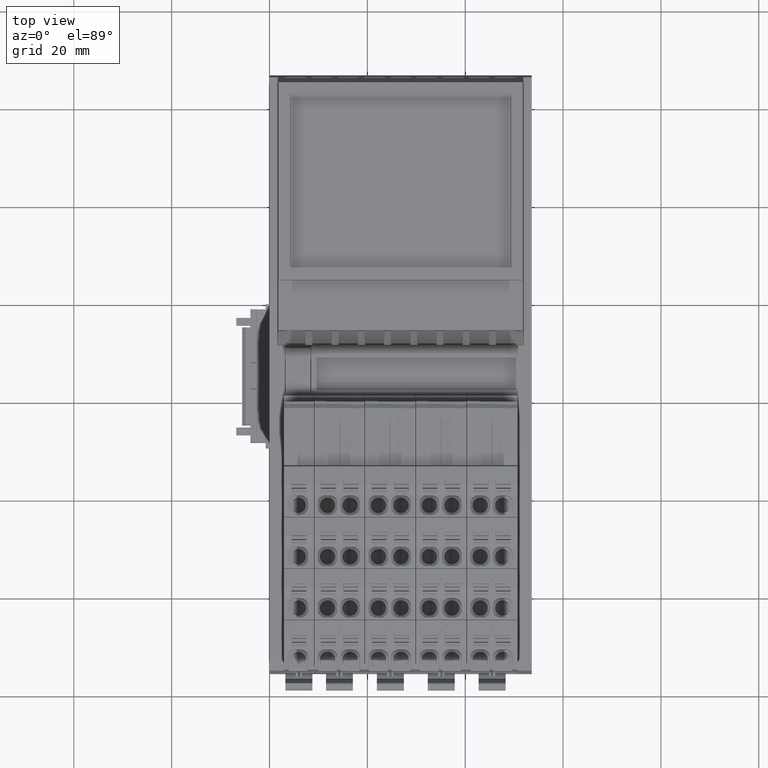
[diagram: clean part render]
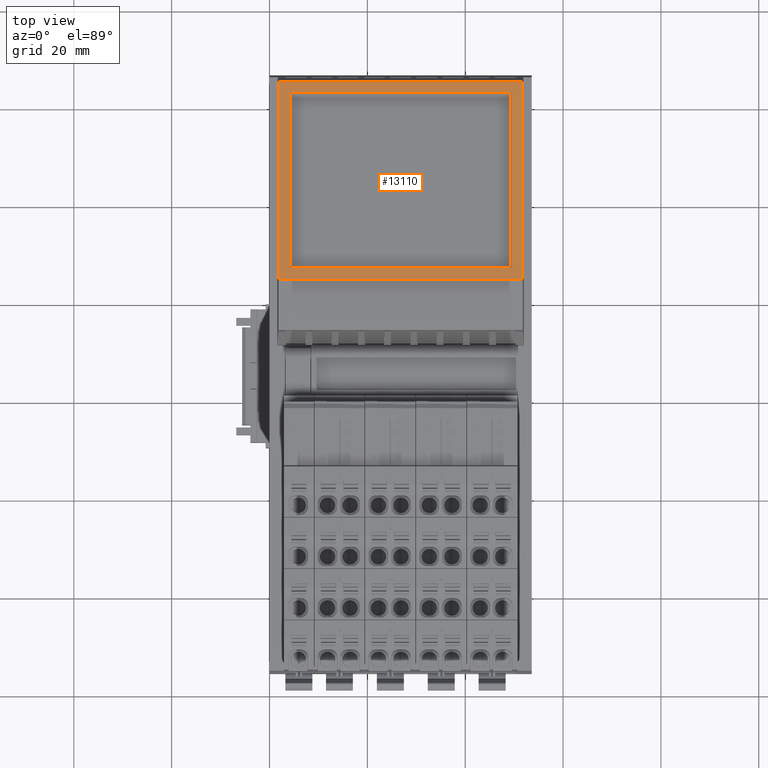
[diagram: same view with one face highlighted and labeled with its STEP entity id]
A machine part, top view. The second image highlights one B-rep face of the part: STEP entity #13110.
In plain terms, the highlighted planar face has unit normal (0, -0, -1).
Its self-contained STEP definition (entity closure, byte-faithful):
#7010=CARTESIAN_POINT('',(77.7835661800199,53.9638295820345,
1.83817404351644));
#7020=VERTEX_POINT('',#7010);
#7050=CARTESIAN_POINT('',(77.7835661800038,53.9638295820312,0.));
#7060=DIRECTION('',(8.77981026340904E-12,1.78947583062968E-12,1.));
#7070=VECTOR('',#7060,1.);
#7080=LINE('',#7050,#7070);
#7090=CARTESIAN_POINT('',(77.783566179582,53.9638295819453,
-48.0381739841063));
#7100=VERTEX_POINT('',#7090);
#7110=EDGE_CURVE('',#7100,#7020,#7080,.T.);
#7800=CARTESIAN_POINT('',(37.6586581128552,49.0371103637114,
1.8381740435707));
#7810=VERTEX_POINT('',#7800);
#7840=CARTESIAN_POINT('',(0.,44.4132085631066,1.83817404362162));
#7850=DIRECTION('',(0.992546151641242,0.121869343405803,
-1.3420962831594E-12));
#7860=VECTOR('',#7850,1.);
#7870=LINE('',#7840,#7860);
#7880=EDGE_CURVE('',#7810,#7020,#7870,.T.);
#12020=CARTESIAN_POINT('',(37.6586581124835,49.0371103636303,
-48.0381739837405));
#12030=VERTEX_POINT('',#12020);
#12060=CARTESIAN_POINT('',(37.6586581128415,49.0371103637084,0.));
#12070=DIRECTION('',(7.45255700258389E-12,1.62650962179142E-12,1.));
#12080=VECTOR('',#12070,1.);
#12090=LINE('',#12060,#12080);
#12100=EDGE_CURVE('',#12030,#7810,#12090,.T.);
#12610=CARTESIAN_POINT('',(-31.246860136439,40.5765765616751,
53.1884466586901));
#12620=DIRECTION('',(0.121869343405803,-0.992546151641242,
7.06147637117315E-13));
#12630=DIRECTION('',(-0.992546151641242,-0.121869343405803,
7.54886482464612E-12));
#12640=AXIS2_PLACEMENT_3D('',#12610,#12620,#12630);
#12650=PLANE('',#12640);
#12660=CARTESIAN_POINT('',(75.7744640844391,53.7171428634169,0.));
#12670=DIRECTION('',(7.41359144665895E-12,1.62172525311682E-12,1.));
#12680=VECTOR('',#12670,1.);
#12690=LINE('',#12660,#12680);
#12700=CARTESIAN_POINT('',(75.7744640841004,53.7171428633428,
-45.6787397549419));
#12710=VERTEX_POINT('',#12700);
#12720=CARTESIAN_POINT('',(75.7744640844352,53.717142863416,
-0.521260160597123));
#12730=VERTEX_POINT('',#12720);
#12740=EDGE_CURVE('',#12710,#12730,#12690,.T.);
#12750=ORIENTED_EDGE('',*,*,#12740,.T.);
#12760=CARTESIAN_POINT('',(0.,44.4132085630728,-45.6787397543656));
#12770=DIRECTION('',(0.992546151641242,0.121869343405803,
-7.54886995881526E-12));
#12780=VECTOR('',#12770,1.);
#12790=LINE('',#12760,#12780);
#12800=CARTESIAN_POINT('',(40.1264647781917,49.3401189214758,
-45.6787397546708));
#12810=VERTEX_POINT('',#12800);
#12820=EDGE_CURVE('',#12810,#12710,#12790,.T.);
#12830=ORIENTED_EDGE('',*,*,#12820,.T.);
#12840=CARTESIAN_POINT('',(40.12646477853,49.3401189215499,0.));
#12850=DIRECTION('',(7.40641588085225E-12,1.62084420442001E-12,1.));
#12860=VECTOR('',#12850,1.);
#12870=LINE('',#12840,#12860);
#12880=CARTESIAN_POINT('',(40.1264647785262,49.340118921549,
-0.521260160326001));
#12890=VERTEX_POINT('',#12880);
#12900=EDGE_CURVE('',#12810,#12890,#12870,.T.);
#12910=ORIENTED_EDGE('',*,*,#12900,.F.);
#12920=CARTESIAN_POINT('',(0.,44.4132085631049,-0.521260160020817));
#12930=DIRECTION('',(-0.992546151641242,-0.121869343405803,
7.54886299341592E-12));
#12940=VECTOR('',#12930,1.);
#12950=LINE('',#12920,#12940);
#12960=EDGE_CURVE('',#12730,#12890,#12950,.T.);
#12970=ORIENTED_EDGE('',*,*,#12960,.T.);
#12980=EDGE_LOOP('',(#12970,#12910,#12830,#12750));
#12990=FACE_BOUND('',#12980,.T.);
#13000=ORIENTED_EDGE('',*,*,#7880,.T.);
#13010=ORIENTED_EDGE('',*,*,#12100,.T.);
#13020=CARTESIAN_POINT('',(0.,44.4132085630711,-48.0381739833973));
#13030=DIRECTION('',(-0.992546151641242,-0.121869343405803,
9.0475237585942E-12));
#13040=VECTOR('',#13030,1.);
#13050=LINE('',#13020,#13040);
#13060=EDGE_CURVE('',#7100,#12030,#13050,.T.);
#13070=ORIENTED_EDGE('',*,*,#13060,.T.);
#13080=ORIENTED_EDGE('',*,*,#7110,.F.);
#13090=EDGE_LOOP('',(#13080,#13070,#13010,#13000));
#13100=FACE_OUTER_BOUND('',#13090,.T.);
#13110=ADVANCED_FACE('',(#12990,#13100),#12650,.F.);